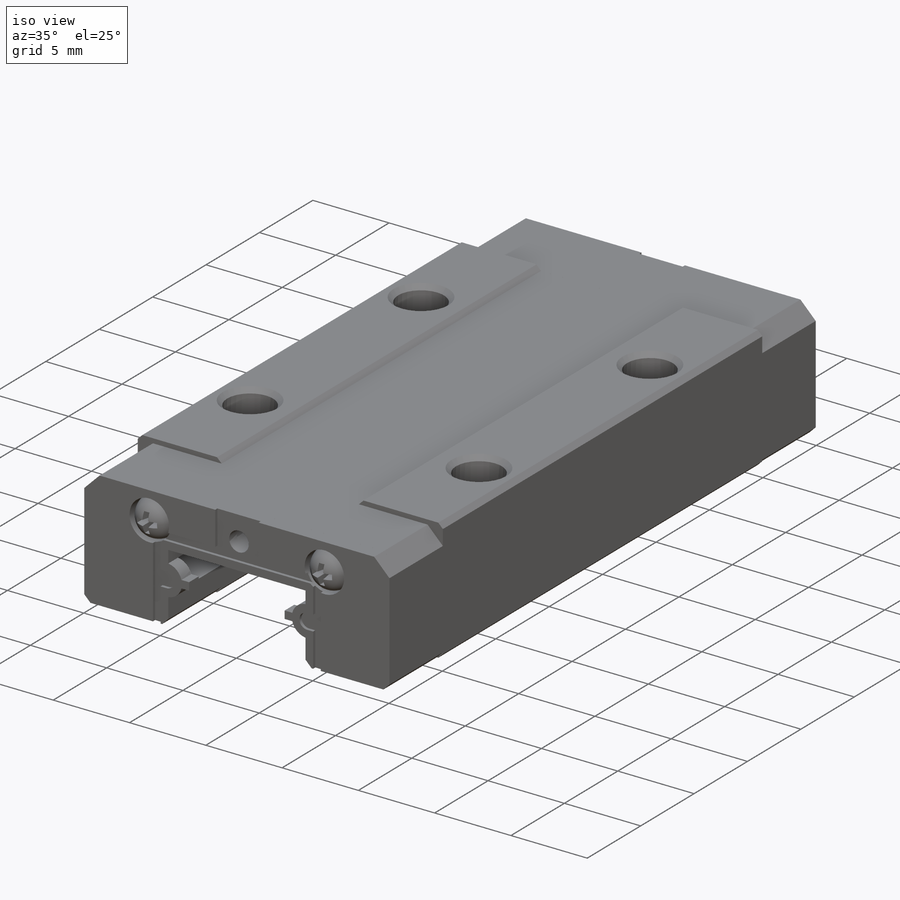
[diagram: iso view]
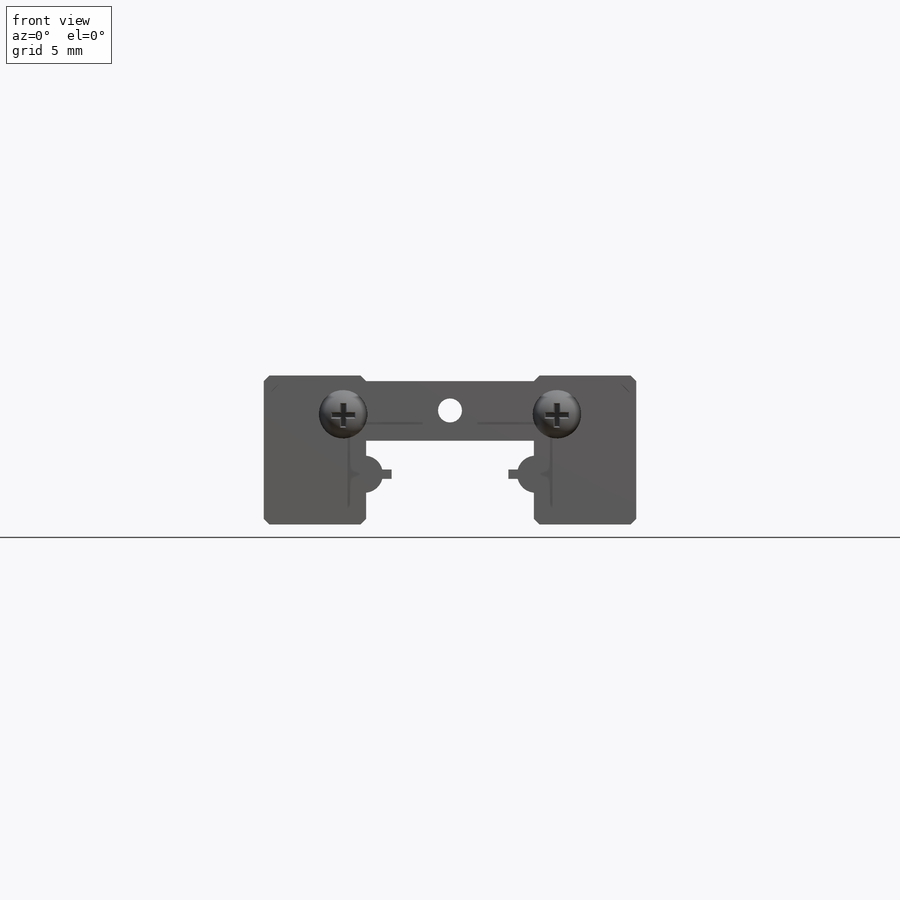
[diagram: front view]
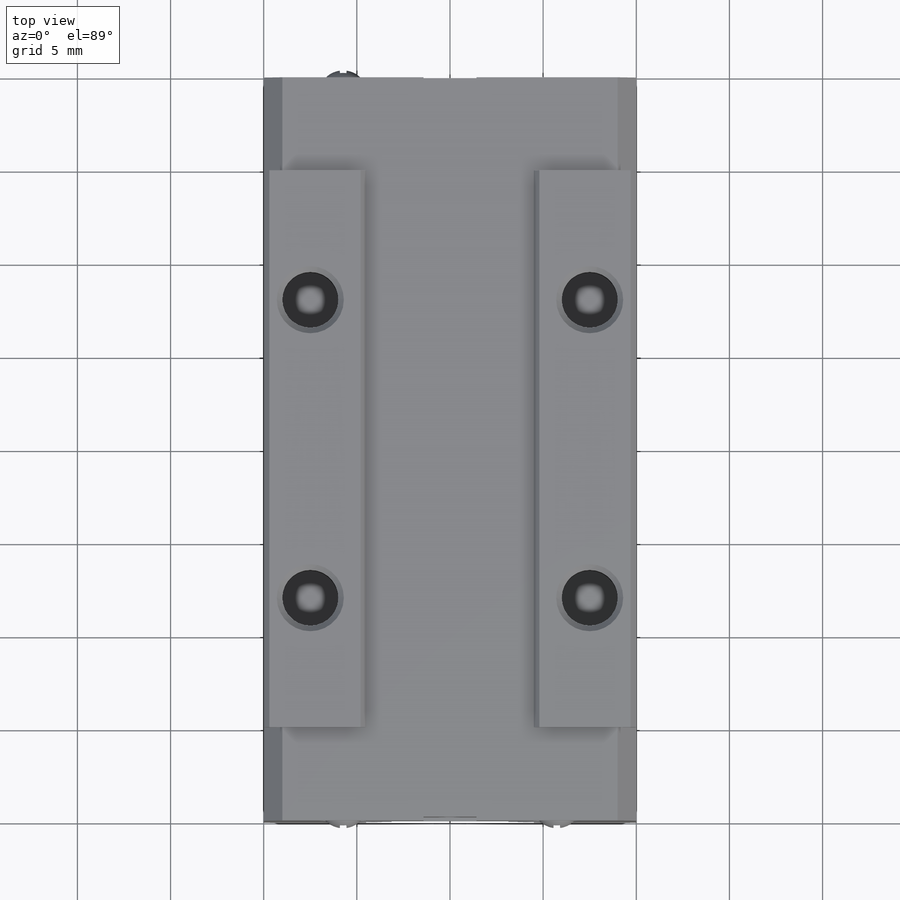
[diagram: top view]
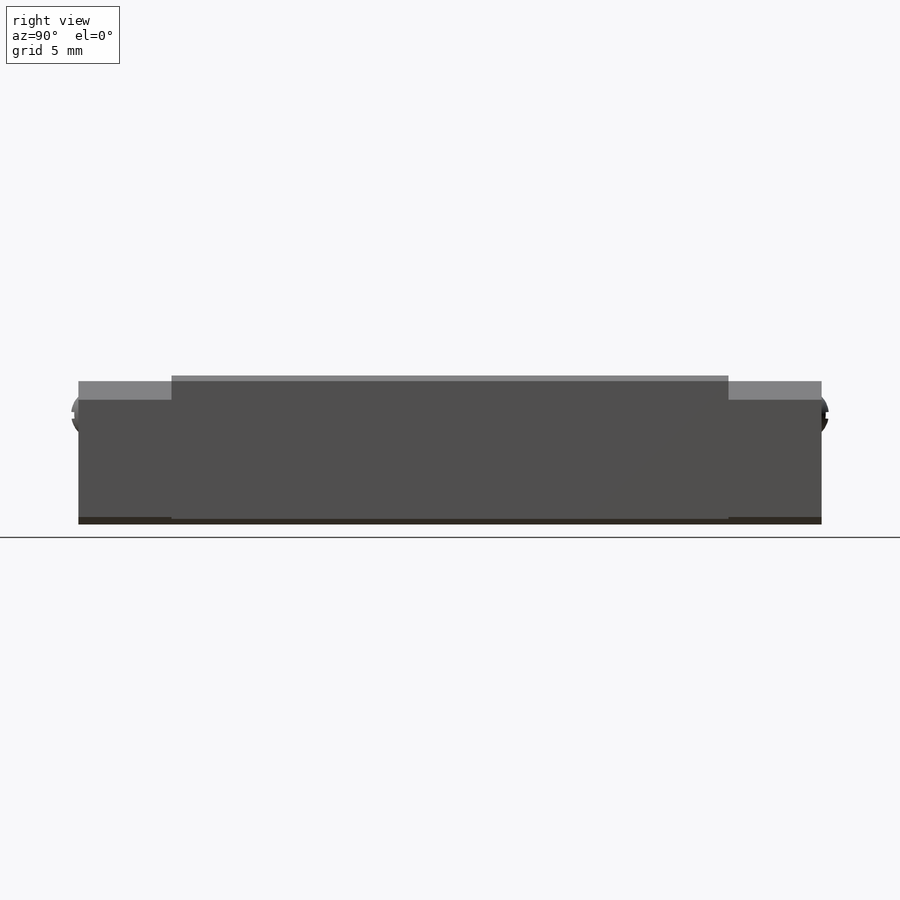
[diagram: right view]
SOLIDWORKS PART (.sldprt)
format: sldprt  version: not decoded by parser v0  size: 1,191,424 bytes
history: native  units: mm
features: sketch x8, chamfer x6, cut_extrude x4, plane x3, extrude x3, material x1, revolve x1, mirror x1 (+9 scaffold rows collapsed)
feature tree (36):
  scaffold x9  (default folders/planes/origin — collapsed)
  material  "Материал <не указан>"
  plane  "Спереди"
  plane  "Сверху"
  plane  "Справа"
  sketch  "Sketch1"  dims[c1.D8=1.0mm c1.D1=8.0mm c1.D2=20.0mm c1.D3=9.0mm c1.D4=9.0mm c1.D5=0.3mm c1.D6=2.5mm c1.D7=3.5mm c2.D6=1.8mm c2.D9=0.1mm c2.D10=0.5mm c2.D11=0.5mm]
  extrude  "Extrude1"  Depth=14.95mm
  extrude  "Extrude8"  [1 undecoded]
  sketch  "Sketch"  dims[D1=4.1mm]
  extrude  "Extrude9"  [1 undecoded]
  sketch  "Sketch"  dims[D1=0.9mm]
  cut_extrude  "Extrude4"  [1 undecoded]
  sketch  "Sketch"
  chamfer  "Chamfer1"  Distance=0.3mm Angle=45deg
  chamfer  "Chamfer5"  Distance=1mm Angle=45deg
  chamfer  "Chamfer6"  Distance=1mm Angle=45deg
  chamfer  "Chamfer7"  Distance=0.4mm Angle=45deg
  chamfer  "Chamfer8"  Distance=0.4mm Angle=45deg
  sketch  "Sketch5"  dims[D3=3.0mm D1=8.0mm D2=7.5mm]
  cut_extrude  "Extrude5"  Depth=3mm
  sketch  "Sketch6"  dims[D1=0.1mm D2=0.1mm]
  revolve  "Revolve1"  Angle=180deg
  sketch  "Sketch7"
  cut_extrude  "Extrude6"  Depth=0.2mm
  sketch  "Sketch9"  dims[c1.D1=0.4mm c1.D2=0.4mm c2.D1=~2.971237mm c2.D2=0.4mm c3.D1=0.5mm c3.D2=0.5mm c3.D3=0.5mm]
  cut_extrude  "Extrude7"  Depth=0.2mm
  chamfer  "Chamfer4"  Distance=0.3mm Angle=45deg
  mirror  "Mirror1"
decode coverage: 17 of 23 modeling features carry decoded parameters
note: ~ marks probable driven/reference dimensions
note: 3 parameter values undecoded
summary: no parameter record found for 3 features
note: suppression state not decoded; provenance and decode notes live in map.json
